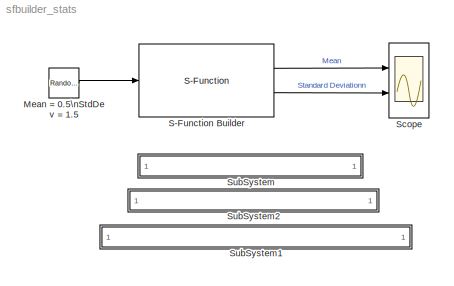
MODEL sfbuilder_stats
KIND model
BLOCK [RandomNumber] Mean = 0.5\nStdDev = 1.5
  Mean = 0.5
  SampleTime = 0.1
  Variance = 2.25
BLOCK [S-Function] S-Function Builder
  CopyFcn = set_param(gcb,'LinkStatus','none')
  FunctionName = sfbuilder_meanstd
  MaskDisplay = plot(val(:,1),val(:,2))\ndisp(sys)\nport_label('input',1,'sig')\nport_label('output',1,'Mean')\nport_label('output',2,'stDeviation')
  MaskIconFrame = on
  MaskIconOpaque = on
  MaskIconRotate = none
  MaskIconUnits = normalized
  MaskInitialization = val = [[.9  0.75 0.75 1 1 .9 .9 1]',[1 1 0.75 0.75 .9 .9 1 .9]'];\nsys = get_param(gcb,'FunctionName');
  MaskType = S-Function Builder
  OpenFcn = sfunctionwizard(gcbh)
  Ports = [1, 2]
  SFunctionModules = sfbuilder_meanstd_wrapper
  WizardData = DataTag0
BLOCK [Scope] Scope
  DataFormat = StructureWithTime
  LimitDataPoints = off
  NumInputPorts = 2
  Ports = [2]
  SaveName = ScopeData2
  TimeRange = 500
  YMax = 2.5~2
  YMin = 0~0
BLOCK [SubSystem] SubSystem
  AttributesFormatString = <path>
  MaskDisplay = disp('matlabroot<path>');
  MaskIconFrame = on
  MaskIconOpaque = on
  MaskIconRotate = none
  MaskIconUnits = autoscale
  MinAlgLoopOccurrences = off
  OpenFcn = edit(fullfile(matlabroot,'simulink','src','sfbuilder_meanstd.c'))
  Ports = []
  PropExecContextAcrossSSBoundary = on
  RTWSystemCode = Auto
  TreatAsAtomicUnit = off
BLOCK [SubSystem] SubSystem1
  AttributesFormatString = <path>
  MaskDisplay = disp('matlabroot<path>');
  MaskIconFrame = on
  MaskIconOpaque = on
  MaskIconRotate = none
  MaskIconUnits = autoscale
  MinAlgLoopOccurrences = off
  OpenFcn = edit(fullfile(matlabroot,'toolbox','simulink','blocks','tlc_c','sfbuilder_meanstd.tlc'))
  Ports = []
  PropExecContextAcrossSSBoundary = on
  RTWSystemCode = Auto
  TreatAsAtomicUnit = off
BLOCK [SubSystem] SubSystem2
  AttributesFormatString = <path>
  MaskDisplay = disp('matlabroot<path>');
  MaskIconFrame = on
  MaskIconOpaque = on
  MaskIconRotate = none
  MaskIconUnits = autoscale
  MinAlgLoopOccurrences = off
  OpenFcn = edit(fullfile(matlabroot,'simulink','src','sfbuilder_meanstd_wrapper.c'))
  Ports = []
  PropExecContextAcrossSSBoundary = on
  RTWSystemCode = Auto
  TreatAsAtomicUnit = off
LINE Mean = 0.5\nStdDev = 1.5:1 -> S-Function Builder:1
LINE S-Function Builder:1 -> Scope:1
LINE S-Function Builder:2 -> Scope:2
note: 6 file-system paths scrubbed to <path> (not preserved elsewhere — flat text is the only slx artifact)
